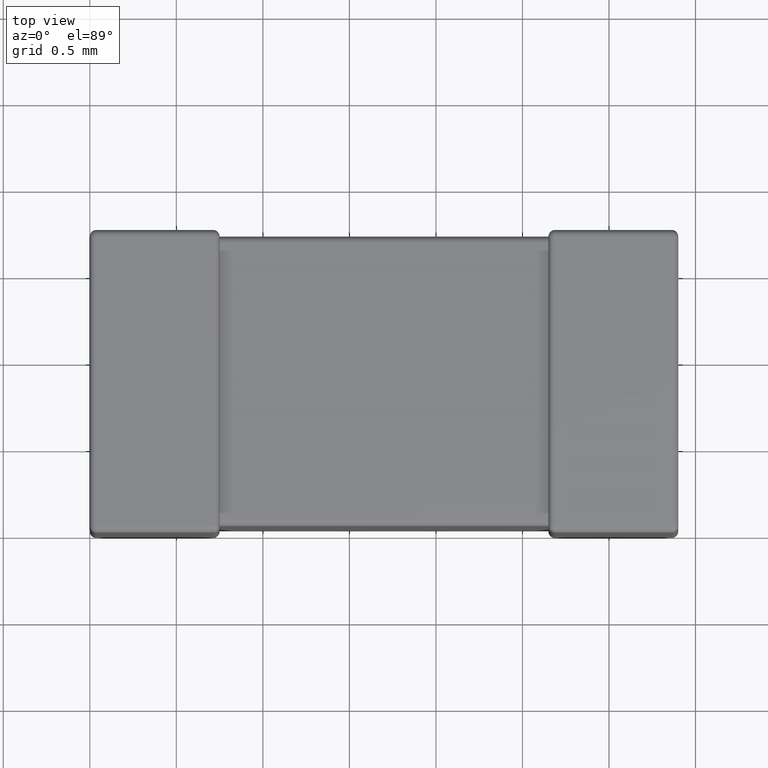
[diagram: clean part render]
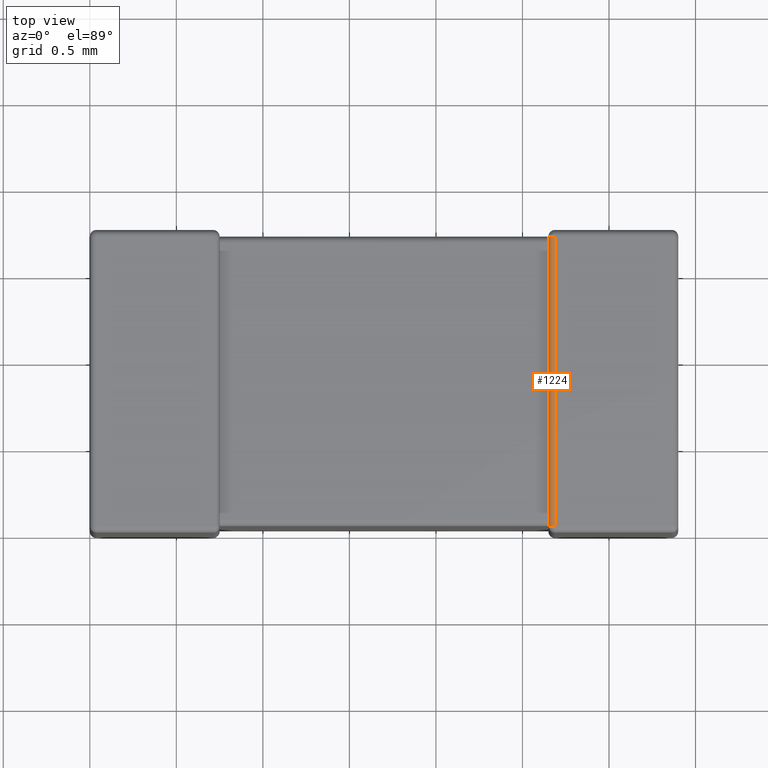
[diagram: same view with one face highlighted and labeled with its STEP entity id]
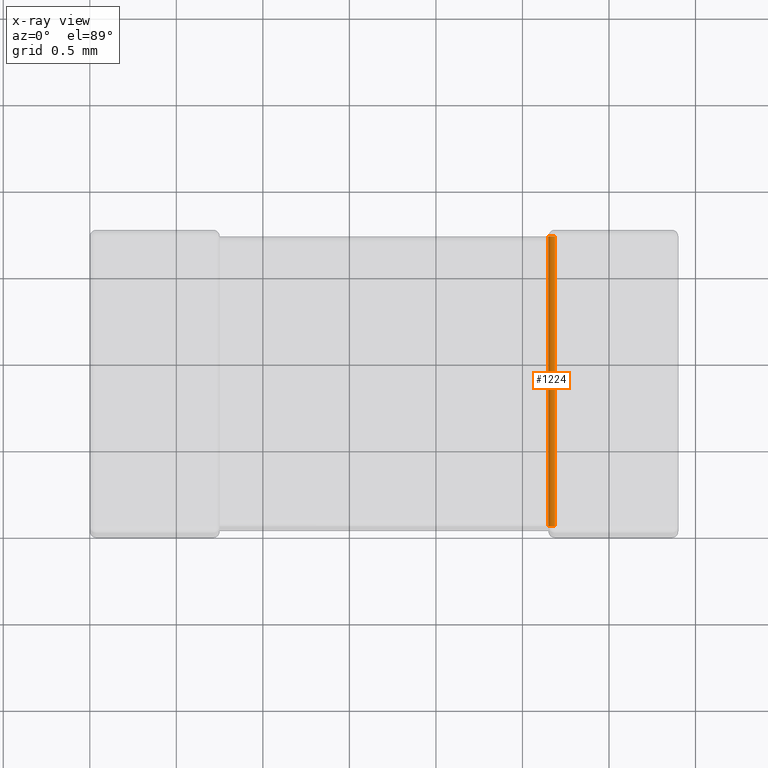
[diagram: x-ray of the same camera — body ghosted, the highlighted face saturated]
A machine part, top view. The second image highlights one B-rep face of the part: STEP entity #1224.
The next image is the same camera in x-ray: the body ghosted, the highlighted face saturated — about 0% of this face is hidden behind the body in this view.
In plain terms, the highlighted cylindrical surface (edge-blend (fillet) strip) has radius 0.0374 mm, axis along (-0, 1, 0).
Its self-contained STEP definition (entity closure, byte-faithful):
#29 = CARTESIAN_POINT ( 'NONE',  ( 2.649999074182535900, 1.679033613440886100, -0.03759388123974623900 ) ) ;
#115 = EDGE_CURVE ( 'NONE', #954, #925, #4211, .T. ) ;
#119 = CARTESIAN_POINT ( 'NONE',  ( 2.687440000000000500, 1.712560000000000100, -0.03743999999999991100 ) ) ;
#124 = LINE ( 'NONE', #852, #1879 ) ;
#172 = CIRCLE ( 'NONE', #3767, 0.03744000000000000100 ) ;
#181 = DIRECTION ( 'NONE',  ( 0.0000000000000000000, 0.0000000000000000000, -1.000000000000000000 ) ) ;
#247 = CARTESIAN_POINT ( 'NONE',  ( 2.650551360743737600, 1.705154208175888100, -0.04484579182411182300 ) ) ;
#308 = EDGE_CURVE ( 'NONE', #3325, #4622, #3227, .T. ) ;
#387 = CARTESIAN_POINT ( 'NONE',  ( 2.649999999999940800, 1.677073826076288700, -0.03743999999999628200 ) ) ;
#483 = AXIS2_PLACEMENT_3D ( 'NONE', #3058, #905, #3822 ) ;
#529 = EDGE_CURVE ( 'NONE', #4622, #4320, #124, .T. ) ;
#643 = ORIENTED_EDGE ( 'NONE', *, *, #1305, .T. ) ;
#662 = CARTESIAN_POINT ( 'NONE',  ( 2.651641925300021200, 0.04840592211237550900, -0.04840592211237541200 ) ) ;
#713 = CARTESIAN_POINT ( 'NONE',  ( 2.649999999999999900, 0.04116342029870844600, -0.04116342029870840400 ) ) ;
#826 = VERTEX_POINT ( 'NONE', #2234 ) ;
#852 = CARTESIAN_POINT ( 'NONE',  ( 2.687440000000000500, 0.0000000000000000000, 0.0000000000000000000 ) ) ;
#905 = DIRECTION ( 'NONE',  ( -0.0000000000000000000, 1.000000000000000000, 0.0000000000000000000 ) ) ;
#925 = VERTEX_POINT ( 'NONE', #662 ) ;
#954 = VERTEX_POINT ( 'NONE', #1086 ) ;
#963 = CARTESIAN_POINT ( 'NONE',  ( 2.650000000000000400, 1.712560000000000100, -0.03743999999999969600 ) ) ;
#991 = CARTESIAN_POINT ( 'NONE',  ( 2.687440000000000500, 1.712560000000000100, 0.0000000000000000000 ) ) ;
#1086 = CARTESIAN_POINT ( 'NONE',  ( 2.650000000000000400, 0.07487999999999990500, -0.03743999999999969600 ) ) ;
#1092 = CARTESIAN_POINT ( 'NONE',  ( 2.651641925300021200, 1.701594077887624600, -0.04840592211237537700 ) ) ;
#1107 = CARTESIAN_POINT ( 'NONE',  ( 2.650419588535662700, 1.695625844641273500, -0.04331013963002131700 ) ) ;
#1224 = ADVANCED_FACE ( 'NONE', ( #3223 ), #4407, .T. ) ;
#1226 = CARTESIAN_POINT ( 'NONE',  ( 2.687440000000000500, 0.03744000000000000100, -0.03744000000000000100 ) ) ;
#1283 = CARTESIAN_POINT ( 'NONE',  ( 2.650314308179935600, 0.05491337878556179500, -0.04294167258188039100 ) ) ;
#1303 = ORIENTED_EDGE ( 'NONE', *, *, #3251, .F. ) ;
#1305 = EDGE_CURVE ( 'NONE', #3325, #3476, #2878, .T. ) ;
#1466 = CARTESIAN_POINT ( 'NONE',  ( 2.650028689506284300, 1.688647876869318900, -0.03975113189969242700 ) ) ;
#1528 = CARTESIAN_POINT ( 'NONE',  ( 2.649981875489027000, 0.06651699334182315000, -0.03815049843049767700 ) ) ;
#1565 = DIRECTION ( 'NONE',  ( -0.0000000000000000000, -1.000000000000000000, -0.0000000000000000000 ) ) ;
#1783 = B_SPLINE_CURVE_WITH_KNOTS ( 'NONE', 3,
 ( #1092, #2566, #1107, #3624, #1466, #3990, #1826, #29, #387, #2915 ),
 .UNSPECIFIED., .F., .F.,
 ( 4, 3, 3, 4 ),
 ( 0.0000000000000000000, 1.178449470714606800E-005, 2.350683308088847900E-005, 2.930195342285767800E-005 ),
 .UNSPECIFIED. ) ;
#1826 = CARTESIAN_POINT ( 'NONE',  ( 2.650002811559151600, 1.680963491890830500, -0.03789882637717090200 ) ) ;
#1841 =( BOUNDED_CURVE ( )  B_SPLINE_CURVE ( 3, ( #4366, #713, #2199, #4090 ),
 .UNSPECIFIED., .F., .F. ) 
 B_SPLINE_CURVE_WITH_KNOTS ( ( 4, 4 ),
 ( 4.712388980384686100, 5.009640341705894800 ),
 .UNSPECIFIED. ) 
 CURVE ( )  GEOMETRIC_REPRESENTATION_ITEM ( )  RATIONAL_B_SPLINE_CURVE ( ( 1.000000000000000000, 0.9926503465430337500, 0.9926503465430337500, 1.000000000000000000 ) ) 
 REPRESENTATION_ITEM ( '' )  );
#1854 = ORIENTED_EDGE ( 'NONE', *, *, #115, .T. ) ;
#1879 = VECTOR ( 'NONE', #1565, 1000.000000000000000 ) ;
#1920 = CARTESIAN_POINT ( 'NONE',  ( 2.687440000000000500, 0.03744000000000000100, 0.0000000000000000000 ) ) ;
#2015 = CARTESIAN_POINT ( 'NONE',  ( 2.650000000000000400, 0.0000000000000000000, -0.03743999999999969600 ) ) ;
#2027 = CARTESIAN_POINT ( 'NONE',  ( 2.651328051716301400, 0.04943055732951958500, -0.04738128689505687700 ) ) ;
#2050 = VECTOR ( 'NONE', #2718, 1000.000000000000000 ) ;
#2199 = CARTESIAN_POINT ( 'NONE',  ( 2.650551360743737200, 0.04484579182411187200, -0.04484579182411183000 ) ) ;
#2234 = CARTESIAN_POINT ( 'NONE',  ( 2.650000000000000400, 0.03743999999999991100, -0.03743999999999969600 ) ) ;
#2320 = DIRECTION ( 'NONE',  ( 0.0000000000000000000, 1.000000000000000000, -0.0000000000000000000 ) ) ;
#2350 = CARTESIAN_POINT ( 'NONE',  ( 2.650133080042509400, 0.05866779514108300800, -0.04087709457867909300 ) ) ;
#2555 = LINE ( 'NONE', #2015, #2050 ) ;
#2566 = CARTESIAN_POINT ( 'NONE',  ( 2.650810345687591800, 1.698879399743857200, -0.04569124396860786700 ) ) ;
#2654 = DIRECTION ( 'NONE',  ( -0.0000000000000000000, 1.000000000000000000, -0.0000000000000000000 ) ) ;
#2718 = DIRECTION ( 'NONE',  ( -0.0000000000000000000, 1.000000000000000000, -0.0000000000000000000 ) ) ;
#2729 = CARTESIAN_POINT ( 'NONE',  ( 2.650876593092027700, 0.05168019289645236400, -0.04549424579225159300 ) ) ;
#2795 = ORIENTED_EDGE ( 'NONE', *, *, #2859, .T. ) ;
#2859 = EDGE_CURVE ( 'NONE', #826, #4320, #172, .T. ) ;
#2878 =( BOUNDED_CURVE ( )  B_SPLINE_CURVE ( 3, ( #963, #3825, #247, #3133 ),
 .UNSPECIFIED., .F., .F. ) 
 B_SPLINE_CURVE_WITH_KNOTS ( ( 4, 4 ),
 ( 1.570796326794893700, 1.868047688116100300 ),
 .UNSPECIFIED. ) 
 CURVE ( )  GEOMETRIC_REPRESENTATION_ITEM ( )  RATIONAL_B_SPLINE_CURVE ( ( 1.000000000000000000, 0.9926503465430338600, 0.9926503465430338600, 1.000000000000000000 ) ) 
 REPRESENTATION_ITEM ( '' )  );
#2915 = CARTESIAN_POINT ( 'NONE',  ( 2.650000000000000400, 1.675120000000000200, -0.03743999999999969600 ) ) ;
#2964 = CARTESIAN_POINT ( 'NONE',  ( 2.650000000000000400, 0.07487999999999990500, -0.03743999999999969600 ) ) ;
#3058 = CARTESIAN_POINT ( 'NONE',  ( 2.687440000000000500, 1.750000000000000000, -0.03743999999999991100 ) ) ;
#3081 = CARTESIAN_POINT ( 'NONE',  ( 2.651641925300021200, 1.701594077887624600, -0.04840592211237537700 ) ) ;
#3133 = CARTESIAN_POINT ( 'NONE',  ( 2.651641925300021200, 1.701594077887624600, -0.04840592211237537700 ) ) ;
#3137 = AXIS2_PLACEMENT_3D ( 'NONE', #119, #2320, #4130 ) ;
#3138 = CARTESIAN_POINT ( 'NONE',  ( 2.651077113600524000, 0.05052718298171987600, -0.04640453747376367000 ) ) ;
#3206 = ORIENTED_EDGE ( 'NONE', *, *, #308, .F. ) ;
#3223 = FACE_OUTER_BOUND ( 'NONE', #4098, .T. ) ;
#3227 = CIRCLE ( 'NONE', #3137, 0.03744000000000000100 ) ;
#3244 = EDGE_CURVE ( 'NONE', #3476, #3295, #1783, .T. ) ;
#3251 = EDGE_CURVE ( 'NONE', #826, #925, #1841, .T. ) ;
#3263 = CARTESIAN_POINT ( 'NONE',  ( 2.650000000000000400, 1.675120000000000200, -0.03743999999999969600 ) ) ;
#3295 = VERTEX_POINT ( 'NONE', #3263 ) ;
#3312 = CARTESIAN_POINT ( 'NONE',  ( 2.650000000000000400, 0.07072689568044651700, -0.03743999999999969600 ) ) ;
#3325 = VERTEX_POINT ( 'NONE', #4450 ) ;
#3476 = VERTEX_POINT ( 'NONE', #3081 ) ;
#3624 = CARTESIAN_POINT ( 'NONE',  ( 2.650223804807156000, 1.692130894679474600, -0.04152759285742850500 ) ) ;
#3767 = AXIS2_PLACEMENT_3D ( 'NONE', #1226, #2654, #181 ) ;
#3822 = DIRECTION ( 'NONE',  ( 0.0000000000000000000, 0.0000000000000000000, 1.000000000000000000 ) ) ;
#3825 = CARTESIAN_POINT ( 'NONE',  ( 2.650000000000000400, 1.708836579701292100, -0.04116342029870841100 ) ) ;
#3990 = CARTESIAN_POINT ( 'NONE',  ( 2.650010299896592000, 1.684830263302209000, -0.03850982503331242000 ) ) ;
#4049 = EDGE_CURVE ( 'NONE', #954, #3295, #2555, .T. ) ;
#4090 = CARTESIAN_POINT ( 'NONE',  ( 2.651641925300021200, 0.04840592211237550900, -0.04840592211237541200 ) ) ;
#4098 = EDGE_LOOP ( 'NONE', ( #2795, #4548, #3206, #643, #4399, #4105, #1854, #1303 ) ) ;
#4105 = ORIENTED_EDGE ( 'NONE', *, *, #4049, .F. ) ;
#4130 = DIRECTION ( 'NONE',  ( 0.0000000000000000000, 0.0000000000000000000, 1.000000000000000000 ) ) ;
#4143 = CARTESIAN_POINT ( 'NONE',  ( 2.650057437254053300, 0.06259449725007711100, -0.03951306597707879300 ) ) ;
#4211 = B_SPLINE_CURVE_WITH_KNOTS ( 'NONE', 3,
 ( #2964, #3312, #1528, #4143, #2350, #1283, #2729, #3138, #2027, #4336 ),
 .UNSPECIFIED., .F., .F.,
 ( 4, 3, 3, 4 ),
 ( 0.0000000000000000000, 1.245931295866766700E-005, 2.494435532442521800E-005, 2.933501522755404000E-005 ),
 .UNSPECIFIED. ) ;
#4320 = VERTEX_POINT ( 'NONE', #1920 ) ;
#4336 = CARTESIAN_POINT ( 'NONE',  ( 2.651641925300021200, 0.04840592211237550900, -0.04840592211237541200 ) ) ;
#4366 = CARTESIAN_POINT ( 'NONE',  ( 2.650000000000000400, 0.03743999999999991100, -0.03743999999999969600 ) ) ;
#4399 = ORIENTED_EDGE ( 'NONE', *, *, #3244, .T. ) ;
#4407 = CYLINDRICAL_SURFACE ( 'NONE', #483, 0.03744000000000000100 ) ;
#4450 = CARTESIAN_POINT ( 'NONE',  ( 2.650000000000000400, 1.712560000000000100, -0.03743999999999969600 ) ) ;
#4548 = ORIENTED_EDGE ( 'NONE', *, *, #529, .F. ) ;
#4622 = VERTEX_POINT ( 'NONE', #991 ) ;